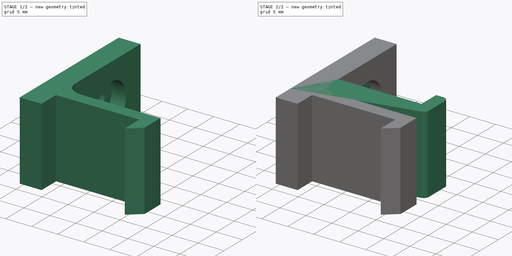
[diagram: build sequence overview — one tinted view per stage of 2, left to right]
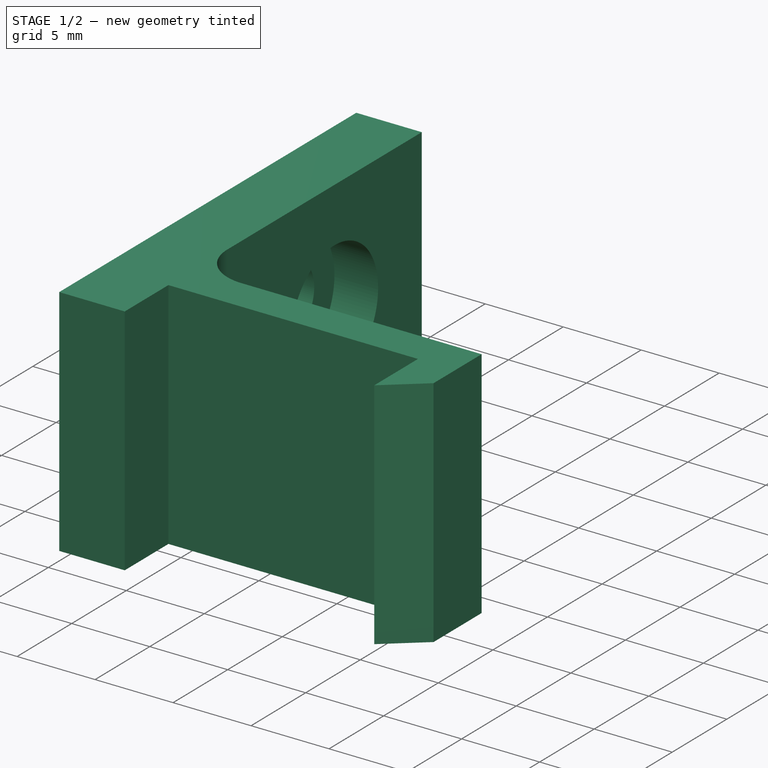
[diagram: stage 1 of 2 — iso view after this stage's code; geometry added in this stage tinted green]
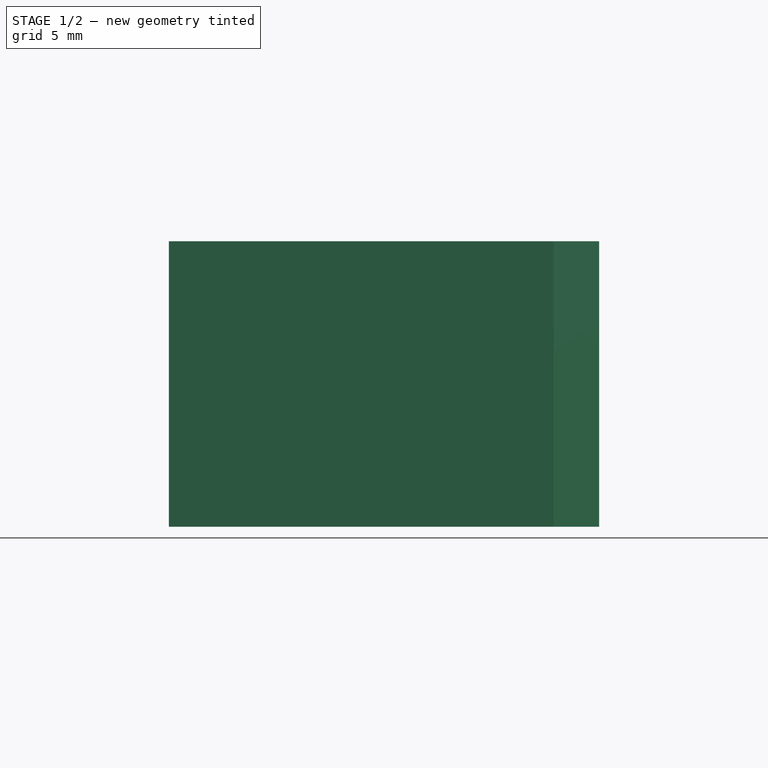
[diagram: stage 1 of 2 — front view after this stage's code; geometry added in this stage tinted green]
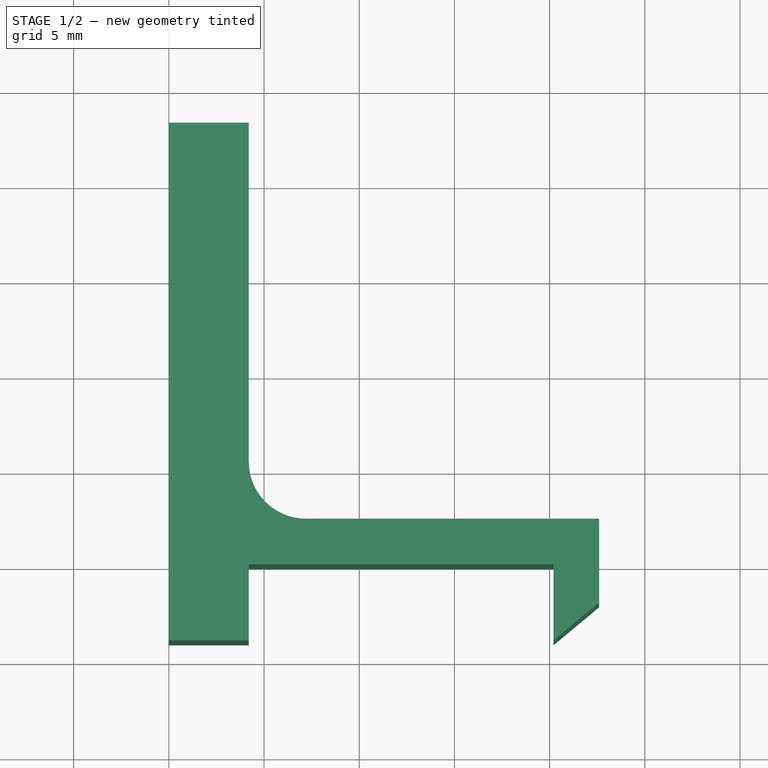
[diagram: stage 1 of 2 — top view after this stage's code; geometry added in this stage tinted green]
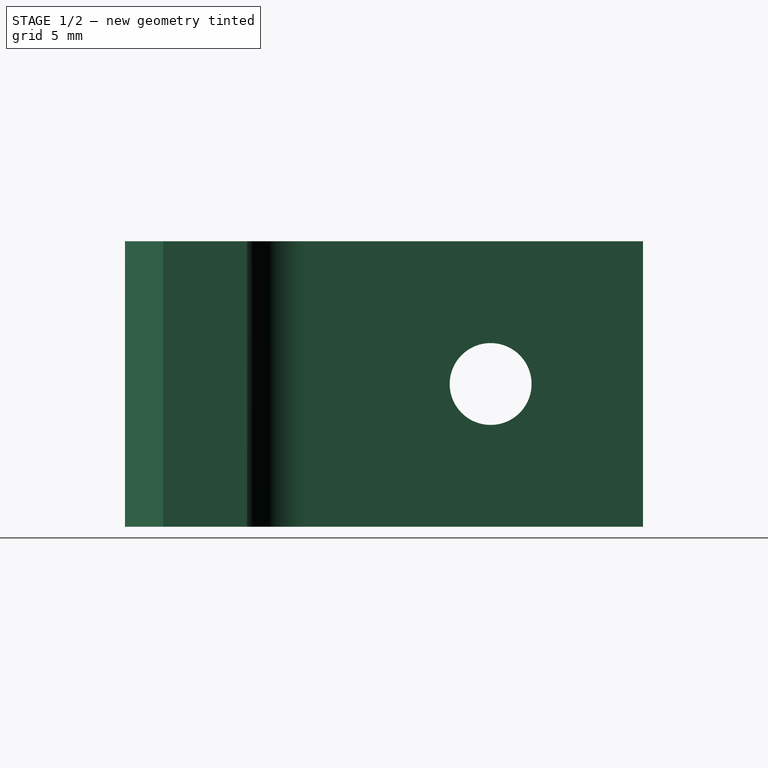
[diagram: stage 1 of 2 — right view after this stage's code; geometry added in this stage tinted green]
FCSTD DOCUMENT  (FreeCAD 1.0R39109 (Git))
Label: u-bracket
License: All rights reserved
objects: Sketcher::SketchObject×4, PartDesign::Pad×2, PartDesign::Hole×2, PartDesign::Body×2, Spreadsheet::Sheet×1
note: 22 computed .brp shape members not serialized (recipe doc carries the construction recipe); baked Part::Feature solids carry a one-line shape summary decoded from their .brp

FEATURE [PartDesign::Body] Body  label="Bottom"
  AllowCompound = false
  Group = -> [Sketch002,Pad,Sketch004,Hole]
  Origin = -> Origin
  Tip = -> Hole
FEATURE [Sketcher::SketchObject] Sketch
  ArcFitTolerance = 1e-06
  AttachmentSupport = -> [XY_Plane001]
  FullyConstrained = true
  MakeInternals = false
  MapMode = 5
  expr: Constraints[20] = <<config>>.back_thick
  expr: Constraints[21] = <<config>>.back_height
  expr: Constraints[22] = <<config>>.edge_height
  expr: Constraints[25] = <<config>>.edge_height / 2
  expr: Constraints[26] = <<config>>.wall_thickness
  expr: Constraints[27] = <<config>>.channel_width
  expr: Constraints[28] = <<config>>.edge_height
  expr: Constraints[30] = <<config>>.back_thick
  expr: Constraints[31] = <<config>>.wall_thickness
  sketch-geometry (14):
    g0: LineSegment StartX=0 StartY=0 StartZ=0 EndX=0 EndY=23.2 EndZ=0
    g1: LineSegment StartX=0 StartY=23.2 StartZ=0 EndX=4.2 EndY=23.2 EndZ=0
    g2: LineSegment StartX=4.2 StartY=23.2 StartZ=0 EndX=4.2 EndY=5.4 EndZ=0
    g3: LineSegment StartX=7.2 StartY=2.4 StartZ=0 EndX=22.6 EndY=2.4 EndZ=0
    g4: LineSegment StartX=22.6 StartY=2.4 StartZ=0 EndX=22.6 EndY=0 EndZ=0
    g5: LineSegment StartX=22.6 StartY=0 StartZ=0 EndX=22.6 EndY=-2 EndZ=0
    g6: LineSegment StartX=20.2 StartY=-4 StartZ=0 EndX=20.2 EndY=0 EndZ=0
    g7: LineSegment StartX=20.2 StartY=0 StartZ=0 EndX=4.2 EndY=0 EndZ=0
    g8: LineSegment StartX=4.2 StartY=0 StartZ=0 EndX=4.2 EndY=-4 EndZ=0
    g9: LineSegment StartX=4.2 StartY=-4 StartZ=0 EndX=0 EndY=-4 EndZ=0
    g10: LineSegment StartX=0 StartY=-4 StartZ=0 EndX=0 EndY=0 EndZ=0
    g11: LineSegment StartX=20.2 StartY=-4 StartZ=0 EndX=22.6 EndY=-2 EndZ=0
    g12: ArcOfCircle CenterX=7.2 CenterY=5.4 CenterZ=0 NormalX=0 NormalY=0 NormalZ=1 AngleXU=0 Radius=3 StartAngle=3.14159 EndAngle=4.71239
    g13: GeomPoint [constr] X=4.2 Y=2.4 Z=0
  constraints (39):
    c: Coincident(g-1,g0)
    c: PointOnObject(g0,g-2)
    c: Coincident(g0,g1)
    c: Horizontal(g1)
    c: Coincident(g1,g2)
    c: Vertical(g2)
    c: Horizontal(g3)
    c: Coincident(g3,g4)
    c: PointOnObject(g4,g-1)
    c: Vertical(g4)
    c: Coincident(g4,g5)
    c: Vertical(g5)
    c: Vertical(g6)
    c: Coincident(g7,g8)
    c: Vertical(g8)
    c: Coincident(g8,g9)
    c: PointOnObject(g9,g-2)
    c: Horizontal(g9)
    c: Coincident(g9,g10)
    c: Coincident(g10,g0)
    c: Distance(g1,g1) = 4.2
    c: DistanceY(g0,g0) = 23.2
    c: DistanceY(g6,g6) = 4
    c: Coincident(g11,g6)
    c: Coincident(g11,g5)
    c: DistanceY(g5,g5) = 2
    c: Distance(g5,g6) = 2.4
    c: Distance(g6,g8) = 16
    c: DistanceY(g10,g10) = 4
    c: PointOnObject(g7,g-1)
    c: DistanceX(g9,g9) = 4.2
    c: DistanceY(g4,g4) = 2.4
    c: Coincident(g7,g6)
    c: PointOnObject(g6,g-1)
    c: PointOnObject(g13,g2)
    c: PointOnObject(g13,g3)
    c: Tangent(g2,g12) = -1.5708
    c: Tangent(g3,g12) = -1.5708
    c: Radius(g12) = 3
FEATURE [PartDesign::Pad] Pad001
  Direction = (0,0,1)
  Length = 15
  Length2 = 10
  Profile = -> Sketch
  ReferenceAxis = -> Sketch [N_Axis]
  Suppressed = false
  Type = 0
  expr: Length = <<config>>.bracket_width
FEATURE [Sketcher::SketchObject] Sketch005
  ArcFitTolerance = 1e-06
  AttachmentSupport = -> [Pad001]
  FullyConstrained = false
  MakeInternals = false
  MapMode = 5
  Placement = pos=(4.2,0,0) rot=(0.57735,0.57735,0.57735;2.0944rad)
  expr: Constraints[0] = <<config>>.bracket_width / 2
  expr: Constraints[1] = <<config>>.hole_loc
  sketch-geometry (1):
    g0: Circle CenterX=15.2 CenterY=7.5 CenterZ=0 NormalX=0 NormalY=0 NormalZ=1 AngleXU=0 Radius=1.041
  constraints (2):
    c: DistanceY(g-1,g0) = 7.5
    c: DistanceX(g-1,g0) = 15.2
FEATURE [PartDesign::Hole] Hole001
  BaseFeature = -> Pad001
  CustomThreadClearance = 0
  Depth = 25
  DepthType = 0
  Diameter = 4.3
  DrillForDepth = false
  DrillPoint = 1
  DrillPointAngle = 118
  HoleCutCountersinkAngle = 90
  HoleCutCustomValues = false
  HoleCutDepth = 2.8
  HoleCutDiameter = 8
  HoleCutType = 1
  ModelThread = false
  Profile = -> Sketch005
  Suppressed = false
  Tapered = false
  TaperedAngle = 90
  ThreadClass = 0
  ThreadDepth = 25
  ThreadDepthType = 0
  ThreadDirection = 0
  ThreadFit = 0
  ThreadSize = 5
  ThreadType = 3
  Threaded = false
  UseCustomThreadClearance = false
  expr: HoleCutDepth = <<config>>.counter_sink
  expr: HoleCutDiameter = <<config>>.counterbore
FEATURE [PartDesign::Body] Body001  label="Top"
  AllowCompound = false
  Group = -> [Sketch,Pad001,Sketch005,Hole001]
  Origin = -> Origin001
  Tip = -> Hole001
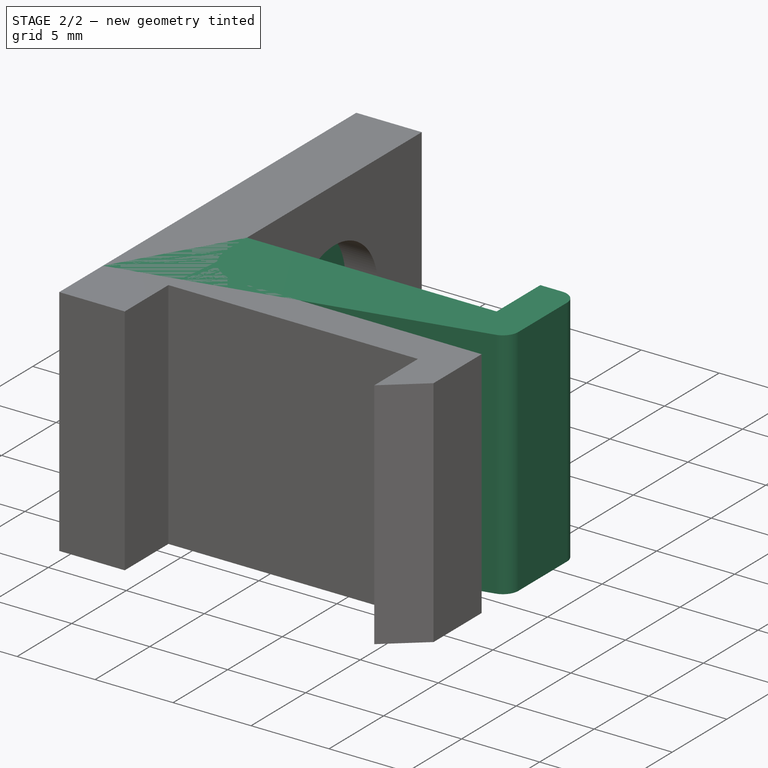
[diagram: stage 2 of 2 — iso view after this stage's code; geometry added in this stage tinted green]
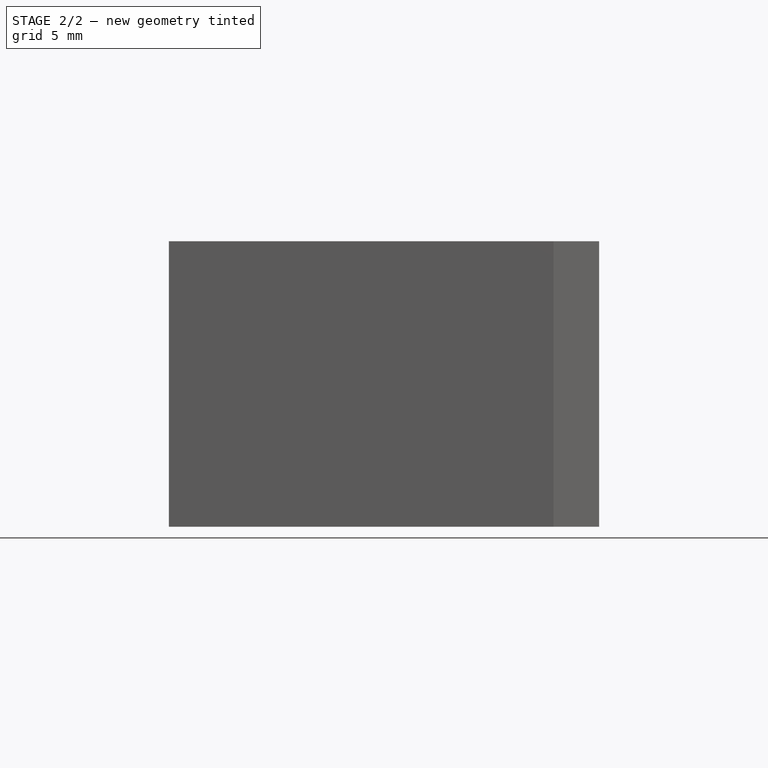
[diagram: stage 2 of 2 — front view after this stage's code; geometry added in this stage tinted green]
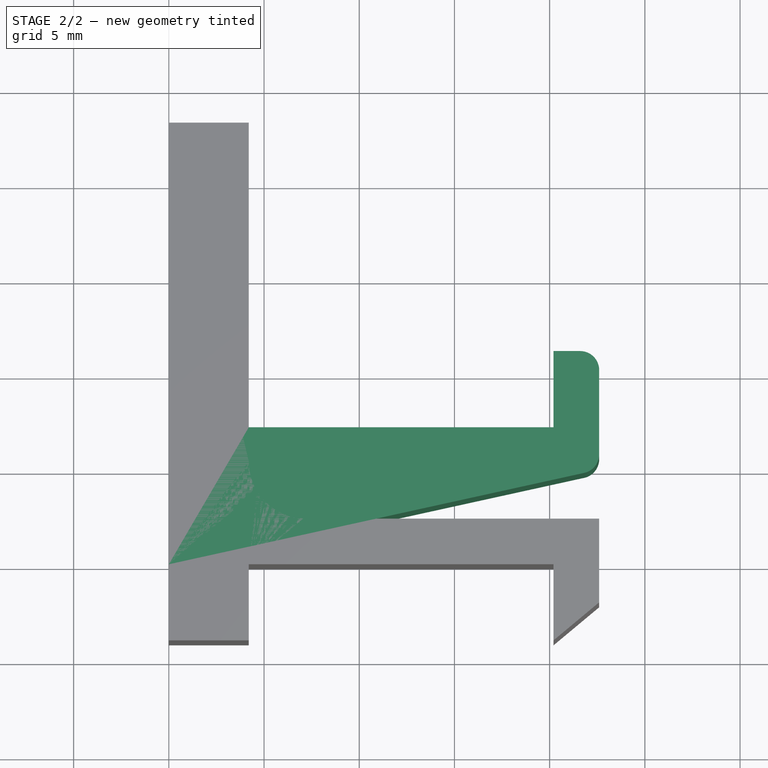
[diagram: stage 2 of 2 — top view after this stage's code; geometry added in this stage tinted green]
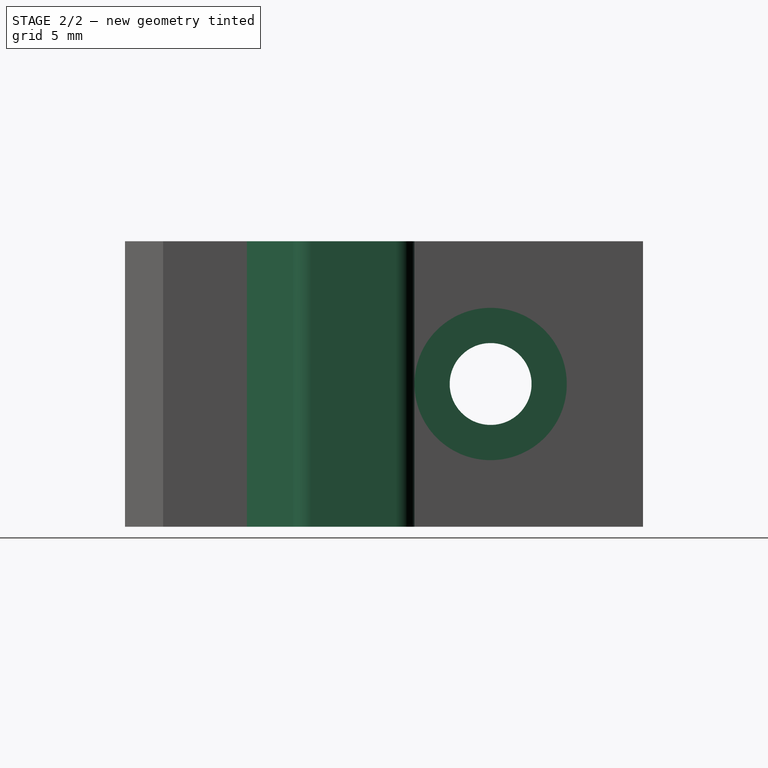
[diagram: stage 2 of 2 — right view after this stage's code; geometry added in this stage tinted green]
FEATURE [Spreadsheet::Sheet] Spreadsheet  label="config"
  cells = A1='Model Config; E1='Printer Config; A2='Name; B2='Value; C2='Notes; E2='Name; F2='Value; G2='Notes; A3='channel-width; B3(channel_width)=16; E3='nozzle; F3(nozzle)=0.4; A4='bracket width; B4(bracket_width)=15; A5='screw_size; B5(screw_size)=2.8; C5='#6 screw; A6='screw_head_height; B6(counter_sink)=2.8; A7='counterbore diameter; B7(counterbore)=8; C7='#6 pan head; A8='chamfer; B8(chamfer)=1; E8='Calculated; A9='back-height; B9(back_height)==counterbore_clear + bottom_thick; E9='bottom thickness; F9(bottom_thick)==wall_thickness * 3; E10='bracket thickness; F10(back_thick)==counter_sink * 1.5; E11='Wall side thickness; F11(wall_thickness)==nozzle * 6; E12='edge-height; F12(edge_height)==0.25 * counterbore_clear; E13='hole clearance; F13(counterbore_clear)==counterbore * 2; E14='hole_loc; F14(hole_loc)==back_height - counterbore
FEATURE [Sketcher::SketchObject] Sketch002
  ArcFitTolerance = 1e-06
  AttachmentSupport = -> [XY_Plane]
  FullyConstrained = true
  MakeInternals = false
  MapMode = 5
  expr: Constraints[10] = <<config>>.wall_thickness * 3
  expr: Constraints[15] = <<config>>.chamfer
  expr: Constraints[16] = <<config>>.back_height
  expr: Constraints[17] = <<config>>.edge_height
  expr: Constraints[21] = <<config>>.wall_thickness
  expr: Constraints[26] = <<config>>.chamfer
  expr: Constraints[27] = <<config>>.channel_width
  expr: Constraints[30] = <<config>>.wall_thickness
  expr: Constraints[9] = <<config>>.back_thick
  sketch-geometry (12):
    g0: LineSegment StartX=0 StartY=0 StartZ=0 EndX=21.8149 EndY=4.8 EndZ=0
    g1: LineSegment StartX=22.6 StartY=5.77664 StartZ=0 EndX=22.6 EndY=10.2 EndZ=0
    g2: LineSegment StartX=20.2 StartY=7.2 StartZ=0 EndX=4.2 EndY=7.2 EndZ=0
    g3: LineSegment StartX=4.2 StartY=7.2 StartZ=0 EndX=4.2 EndY=23.2 EndZ=0
    g4: LineSegment StartX=4.2 StartY=23.2 StartZ=0 EndX=0 EndY=23.2 EndZ=0
    g5: LineSegment StartX=0 StartY=23.2 StartZ=0 EndX=0 EndY=0 EndZ=0
    g6: ArcOfCircle CenterX=21.6 CenterY=5.77664 CenterZ=0 NormalX=0 NormalY=0 NormalZ=1 AngleXU=0 Radius=1 StartAngle=4.92897 EndAngle=6.28319
    g7: GeomPoint [constr] X=22.6 Y=4.97275 Z=0
    g8: LineSegment StartX=20.2 StartY=7.2 StartZ=0 EndX=20.2 EndY=11.2 EndZ=0
    g9: LineSegment StartX=20.2 StartY=11.2 StartZ=0 EndX=21.6 EndY=11.2 EndZ=0
    g10: ArcOfCircle CenterX=21.6 CenterY=10.2 CenterZ=0 NormalX=0 NormalY=0 NormalZ=1 AngleXU=0 Radius=1 StartAngle=-9e-16 EndAngle=1.5708
    g11: GeomPoint [constr] X=22.6 Y=11.2 Z=0
  constraints (31):
    c: Coincident(g-1,g0)
    c: Vertical(g1)
    c: Horizontal(g2)
    c: Vertical(g3)
    c: Coincident(g3,g4)
    c: Horizontal(g4)
    c: Coincident(g4,g5)
    c: Coincident(g5,g0)
    c: Vertical(g5)
    c: DistanceX(g4,g4) = 4.2
    c: Distance(g0,g2) = 7.2
    c: PointOnObject(g7,g0)
    c: PointOnObject(g7,g1)
    c: Tangent(g0,g6) = -1.5708
    c: Tangent(g1,g6) = -1.5708
    c: Distance(g6,g1) = 1
    c: Distance(g-1,g4) = 23.2
    c: Distance(g11,g2) = 4
    c: Vertical(g8)
    c: Coincident(g8,g9)
    c: Horizontal(g9)
    c: DistanceX(g9,g11) = 2.4
    c: PointOnObject(g11,g1)
    c: PointOnObject(g11,g9)
    c: Tangent(g1,g10) = -1.5708
    c: Tangent(g9,g10) = 1.5708
    c: Distance(g10,g1) = 1
    c: Distance(g8,g3) = 16
    c: Coincident(g3,g2)
    c: Coincident(g8,g2)
    c: Distance(g0,g2) = 2.4
FEATURE [PartDesign::Pad] Pad
  Direction = (0,0,1)
  Length = 15
  Length2 = 10
  Profile = -> Sketch002
  ReferenceAxis = -> Sketch002 [N_Axis]
  Suppressed = false
  Type = 0
  expr: Length = <<config>>.bracket_width
FEATURE [Sketcher::SketchObject] Sketch004
  ArcFitTolerance = 1e-06
  AttachmentSupport = -> [Pad]
  FullyConstrained = false
  MakeInternals = false
  MapMode = 5
  Placement = pos=(4.2,0,0) rot=(0.57735,0.57735,0.57735;2.0944rad)
  expr: Constraints[0] = <<config>>.bracket_width / 2
  expr: Constraints[1] = -<<config>>.hole_loc
  sketch-geometry (2):
    g0: GeomPoint [constr] X=15.2 Y=7.5 Z=0
    g1: Circle CenterX=15.2 CenterY=7.5 CenterZ=0 NormalX=0 NormalY=0 NormalZ=1 AngleXU=0 Radius=1.47637
  constraints (3):
    c: Distance(g0,g-1) = 7.5
    c: DistanceX(g0,g-1) = -15.2
    c: Coincident(g1,g0)
FEATURE [PartDesign::Hole] Hole
  BaseFeature = -> Pad
  CustomThreadClearance = 0
  Depth = 25
  DepthType = 0
  Diameter = 4.3
  DrillForDepth = false
  DrillPoint = 1
  DrillPointAngle = 118
  HoleCutCountersinkAngle = 90
  HoleCutCustomValues = false
  HoleCutDepth = 2.1
  HoleCutDiameter = 8
  HoleCutType = 1
  ModelThread = false
  Profile = -> Sketch004 [Edge1]
  Suppressed = false
  Tapered = false
  TaperedAngle = 90
  ThreadClass = 0
  ThreadDepth = 25
  ThreadDepthType = 0
  ThreadDirection = 0
  ThreadFit = 0
  ThreadSize = 5
  ThreadType = 3
  Threaded = false
  UseCustomThreadClearance = false
  expr: HoleCutDepth = <<config>>.back_thick / 2
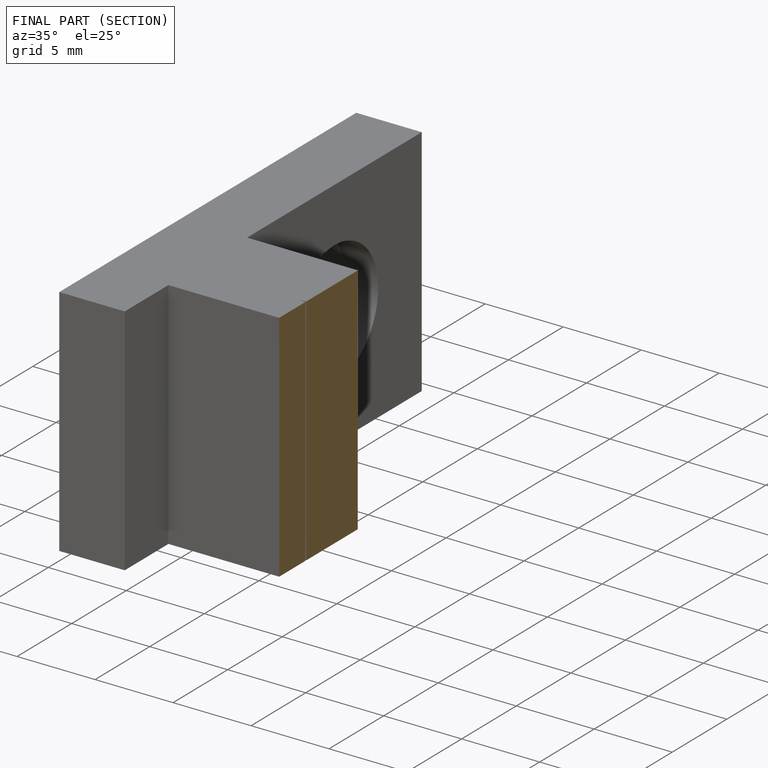
[diagram: finished part — half-section view (interior)]
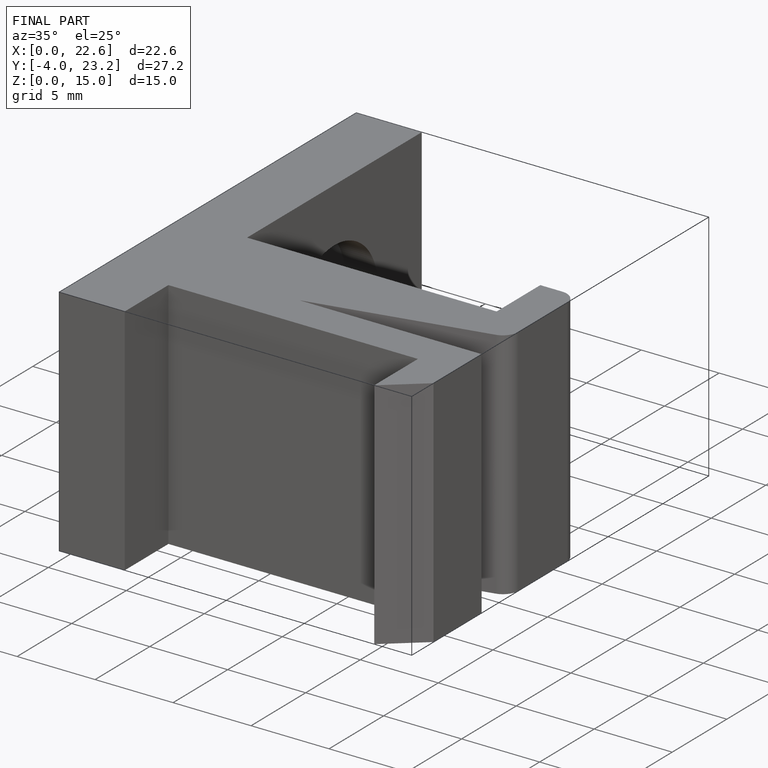
[diagram: finished part — iso view with bounding-box wireframe]
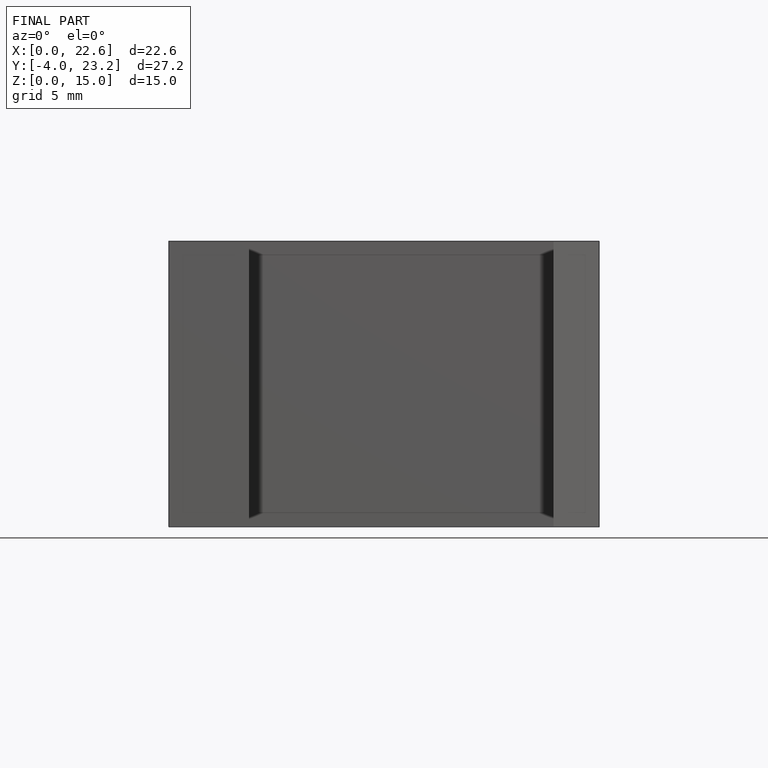
[diagram: finished part — front view with bounding-box wireframe]
